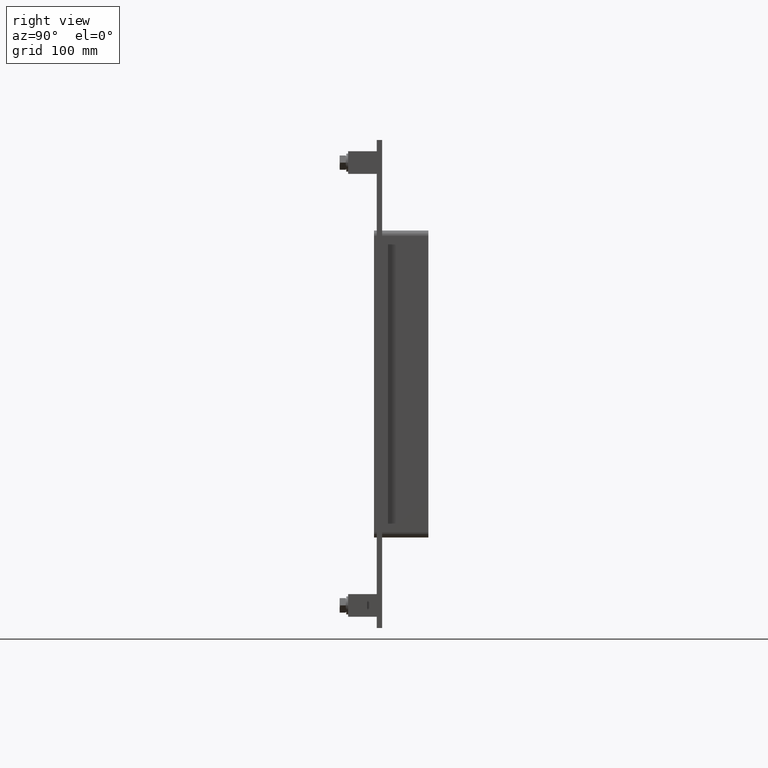
[diagram: clean part render]
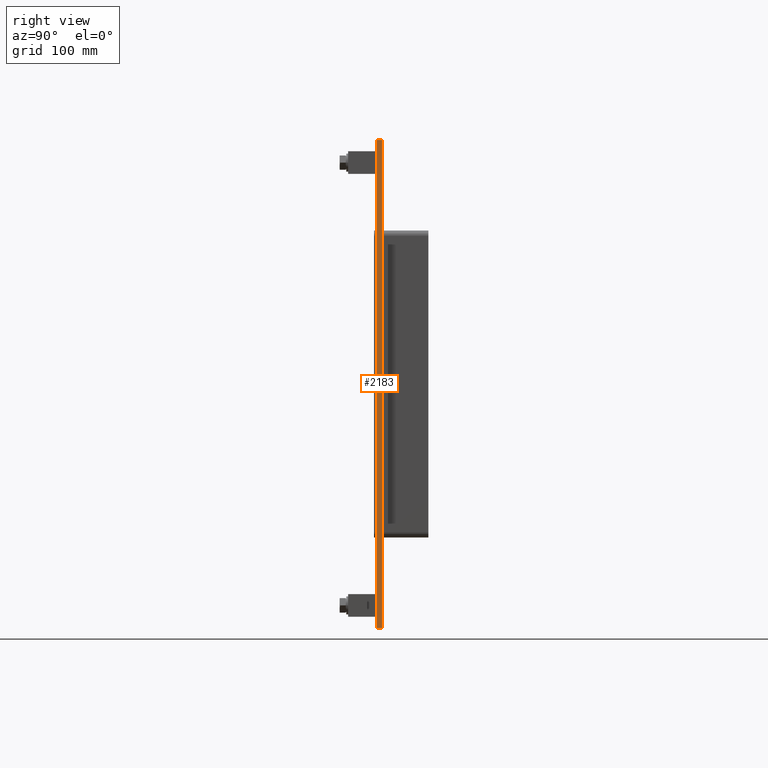
[diagram: same view with one face highlighted and labeled with its STEP entity id]
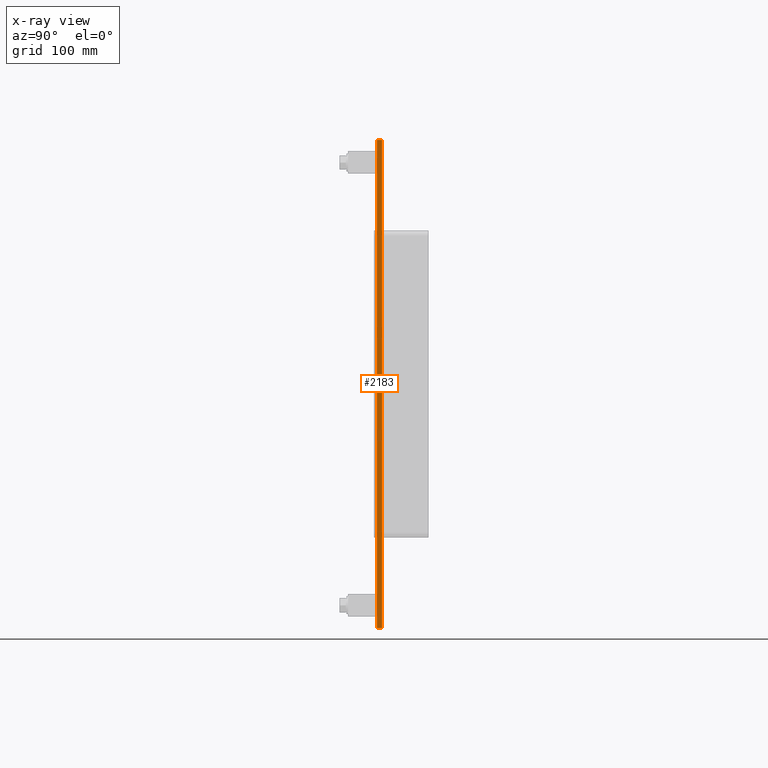
[diagram: x-ray of the same camera — body ghosted, the highlighted face saturated]
A machine part, right view. The second image highlights one B-rep face of the part: STEP entity #2183.
The next image is the same camera in x-ray: the body ghosted, the highlighted face saturated — about 0% of this face is hidden behind the body in this view.
In plain terms, the highlighted planar face has unit normal (1, 0, 0).
Its self-contained STEP definition (entity closure, byte-faithful):
#1831=CARTESIAN_POINT('',(296.75,6.000000000000001,269.49999999999994));
#1832=VERTEX_POINT('',#1831);
#1839=CARTESIAN_POINT('',(296.75,6.000000000000001,-269.49999999999994));
#1840=VERTEX_POINT('',#1839);
#1841=CARTESIAN_POINT('',(296.75000000000006,6.000000000000001,269.49999999999994));
#1842=DIRECTION('',(0.0,0.0,-1.0));
#1843=VECTOR('',#1842,538.99999999999989);
#1844=LINE('',#1841,#1843);
#1845=EDGE_CURVE('',#1832,#1840,#1844,.T.);
#1983=CARTESIAN_POINT('',(296.75000000000006,0.0,269.49999999999994));
#1984=VERTEX_POINT('',#1983);
#1999=CARTESIAN_POINT('',(296.75000000000006,0.0,-269.49999999999994));
#2000=VERTEX_POINT('',#1999);
#2007=CARTESIAN_POINT('',(296.75000000000006,0.0,269.49999999999994));
#2008=DIRECTION('',(0.0,0.0,-1.0));
#2009=VECTOR('',#2008,538.99999999999989);
#2010=LINE('',#2007,#2009);
#2011=EDGE_CURVE('',#1984,#2000,#2010,.T.);
#2158=CARTESIAN_POINT('',(296.75000000000006,0.0,-269.49999999999994));
#2159=DIRECTION('',(0.0,1.0,0.0));
#2160=VECTOR('',#2159,6.000000000000001);
#2161=LINE('',#2158,#2160);
#2162=EDGE_CURVE('',#2000,#1840,#2161,.T.);
#2167=CARTESIAN_POINT('',(296.75000000000006,0.0,269.49999999999994));
#2168=DIRECTION('',(1.0,0.0,0.0));
#2169=DIRECTION('',(0.0,0.0,-1.0));
#2170=AXIS2_PLACEMENT_3D('',#2167,#2168,#2169);
#2171=PLANE('',#2170);
#2172=ORIENTED_EDGE('',*,*,#2011,.T.);
#2173=ORIENTED_EDGE('',*,*,#2162,.T.);
#2174=ORIENTED_EDGE('',*,*,#1845,.F.);
#2175=CARTESIAN_POINT('',(296.75000000000006,0.0,269.49999999999994));
#2176=DIRECTION('',(0.0,1.0,0.0));
#2177=VECTOR('',#2176,6.000000000000001);
#2178=LINE('',#2175,#2177);
#2179=EDGE_CURVE('',#1984,#1832,#2178,.T.);
#2180=ORIENTED_EDGE('',*,*,#2179,.F.);
#2181=EDGE_LOOP('',(#2172,#2173,#2174,#2180));
#2182=FACE_OUTER_BOUND('',#2181,.T.);
#2183=ADVANCED_FACE('',(#2182),#2171,.T.);